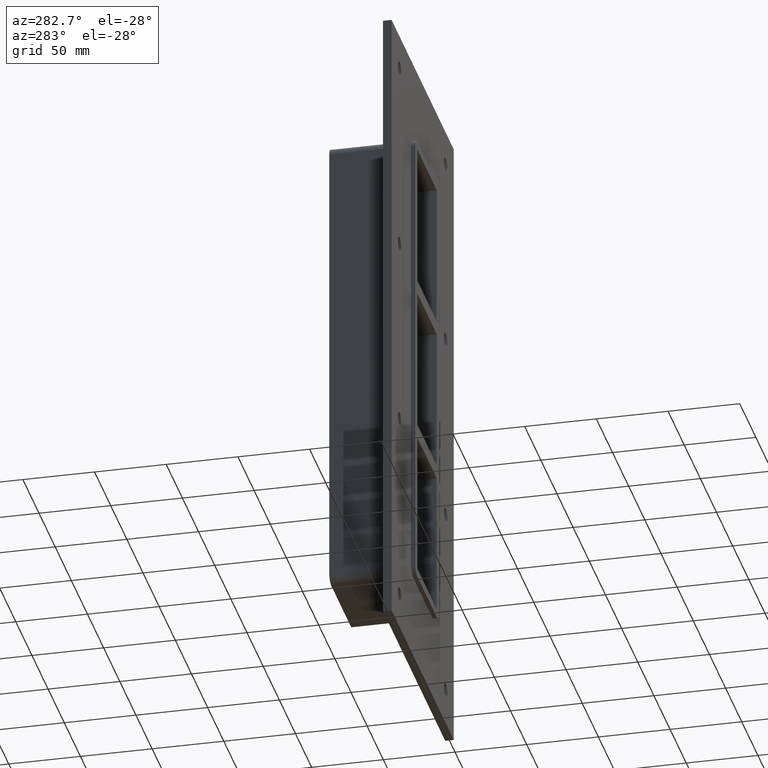
[diagram: clean part render]
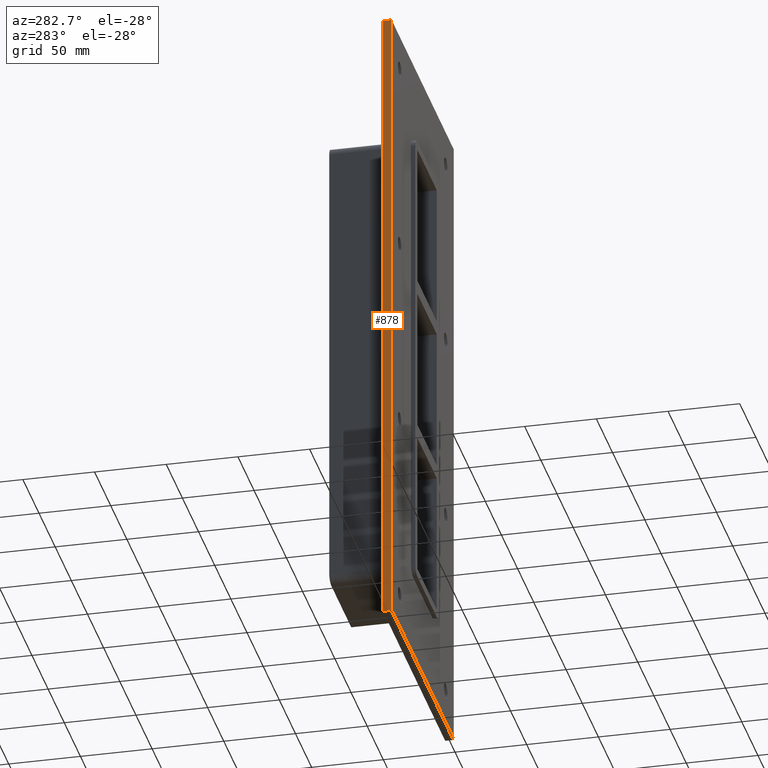
[diagram: same view with one face highlighted and labeled with its STEP entity id]
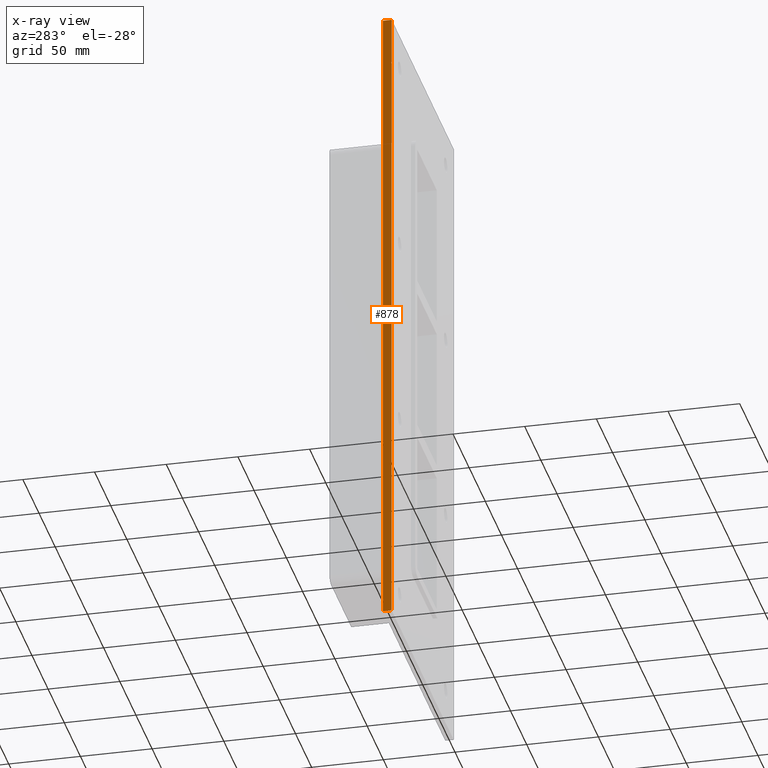
[diagram: x-ray of the same camera — body ghosted, the highlighted face saturated]
A machine part, auxiliary view. The second image highlights one B-rep face of the part: STEP entity #878.
The next image is the same camera in x-ray: the body ghosted, the highlighted face saturated — about 0% of this face is hidden behind the body in this view.
In plain terms, the highlighted planar face has unit normal (-1, 0, 0).
Its self-contained STEP definition (entity closure, byte-faithful):
#594=CARTESIAN_POINT('',(-96.249999999999986,6.000000000000001,227.5));
#595=VERTEX_POINT('',#594);
#612=CARTESIAN_POINT('',(-96.249999999999986,6.000000000000001,-227.49999999999994));
#613=VERTEX_POINT('',#612);
#620=CARTESIAN_POINT('',(-96.249999999999986,6.000000000000001,-227.49999999999994));
#621=DIRECTION('',(0.0,0.0,1.0));
#622=VECTOR('',#621,454.99999999999994);
#623=LINE('',#620,#622);
#624=EDGE_CURVE('',#613,#595,#623,.T.);
#728=CARTESIAN_POINT('',(-96.249999999999986,0.0,227.5));
#729=VERTEX_POINT('',#728);
#738=CARTESIAN_POINT('',(-96.249999999999986,0.0,-227.49999999999994));
#739=VERTEX_POINT('',#738);
#740=CARTESIAN_POINT('',(-96.249999999999986,0.0,-227.49999999999994));
#741=DIRECTION('',(0.0,0.0,1.0));
#742=VECTOR('',#741,454.99999999999994);
#743=LINE('',#740,#742);
#744=EDGE_CURVE('',#739,#729,#743,.T.);
#857=CARTESIAN_POINT('',(-96.249999999999986,0.0,-227.49999999999994));
#858=DIRECTION('',(-1.0,0.0,0.0));
#859=DIRECTION('',(0.0,0.0,1.0));
#860=AXIS2_PLACEMENT_3D('',#857,#858,#859);
#861=PLANE('',#860);
#862=ORIENTED_EDGE('',*,*,#744,.T.);
#863=CARTESIAN_POINT('',(-96.249999999999986,0.0,227.5));
#864=DIRECTION('',(0.0,1.0,0.0));
#865=VECTOR('',#864,6.000000000000001);
#866=LINE('',#863,#865);
#867=EDGE_CURVE('',#729,#595,#866,.T.);
#868=ORIENTED_EDGE('',*,*,#867,.T.);
#869=ORIENTED_EDGE('',*,*,#624,.F.);
#870=CARTESIAN_POINT('',(-96.249999999999986,0.0,-227.49999999999994));
#871=DIRECTION('',(0.0,1.0,0.0));
#872=VECTOR('',#871,6.000000000000001);
#873=LINE('',#870,#872);
#874=EDGE_CURVE('',#739,#613,#873,.T.);
#875=ORIENTED_EDGE('',*,*,#874,.F.);
#876=EDGE_LOOP('',(#862,#868,#869,#875));
#877=FACE_OUTER_BOUND('',#876,.T.);
#878=ADVANCED_FACE('',(#877),#861,.T.);